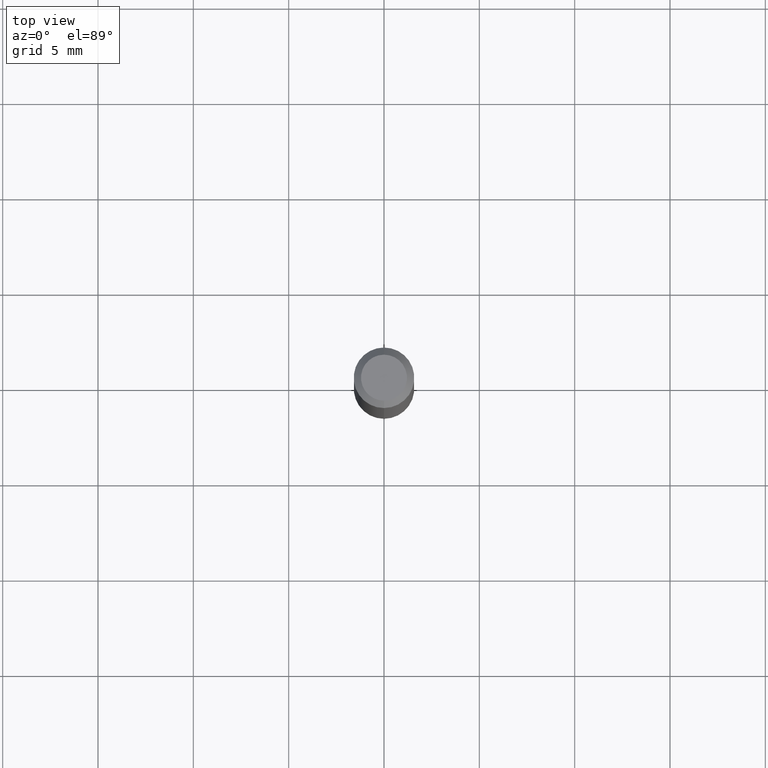
[diagram: clean part render]
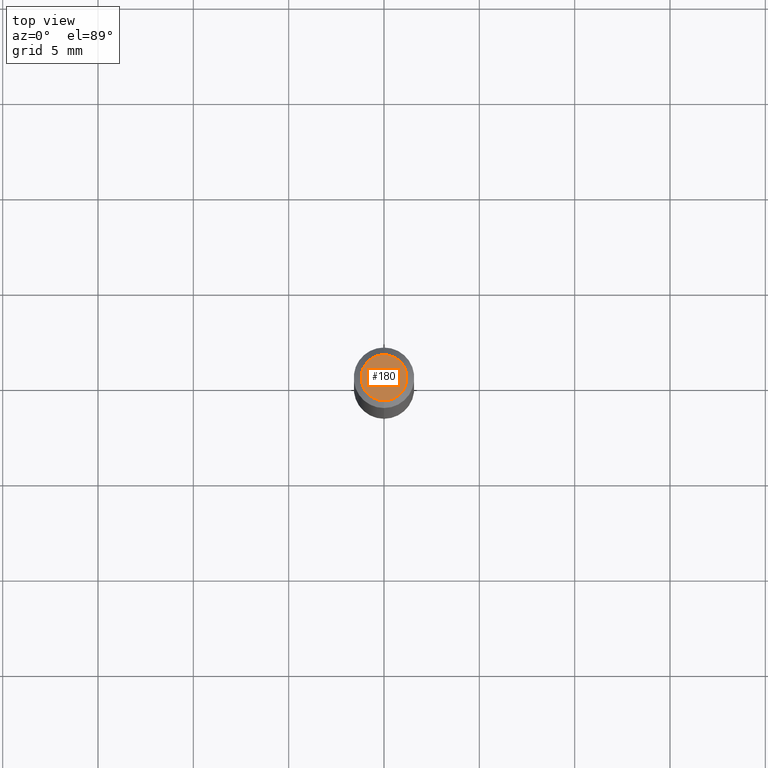
[diagram: same view with one face highlighted and labeled with its STEP entity id]
A machine part, top view. The second image highlights one B-rep face of the part: STEP entity #180.
In plain terms, the highlighted planar face has unit normal (0, -0, -1).
Its self-contained STEP definition (entity closure, byte-faithful):
#22 = CIRCLE ( 'NONE', #226, 0.04749999999999999362 ) ;
#56 = DIRECTION ( 'NONE',  ( -2.445468490087946806E-29, 3.491481791512312384E-15, 1.000000000000000000 ) ) ;
#90 = EDGE_LOOP ( 'NONE', ( #480, #282 ) ) ;
#113 = CARTESIAN_POINT ( 'NONE',  ( 3.316907271900976096E-16, 0.04749999999999999362, -1.985954913721402075E-16 ) ) ;
#130 = VERTEX_POINT ( 'NONE', #203 ) ;
#136 = EDGE_CURVE ( 'NONE', #326, #130, #22, .T. ) ;
#159 = CARTESIAN_POINT ( 'NONE',  ( 1.601787058865817249E-45, -2.286927994606437826E-31, -6.550021255061077955E-17 ) ) ;
#180 = ADVANCED_FACE ( 'NONE', ( #313 ), #468, .F. ) ;
#203 = CARTESIAN_POINT ( 'NONE',  ( 3.840629472727447874E-16, 0.04749999999999999362, -2.313455976474456035E-16 ) ) ;
#226 = AXIS2_PLACEMENT_3D ( 'NONE', #159, #507, #317 ) ;
#244 = CARTESIAN_POINT ( 'NONE',  ( -3.773273898774340269E-16, -0.04749999999999999362, 1.003451725462240444E-16 ) ) ;
#252 = AXIS2_PLACEMENT_3D ( 'NONE', #407, #56, #358 ) ;
#253 = AXIS2_PLACEMENT_3D ( 'NONE', #113, #276, #426 ) ;
#274 = EDGE_CURVE ( 'NONE', #130, #326, #389, .T. ) ;
#276 = DIRECTION ( 'NONE',  ( 2.445468490087946245E-29, -3.491481791512312778E-15, -1.000000000000000000 ) ) ;
#282 = ORIENTED_EDGE ( 'NONE', *, *, #136, .T. ) ;
#313 = FACE_OUTER_BOUND ( 'NONE', #90, .T. ) ;
#317 = DIRECTION ( 'NONE',  ( -6.982962677686266711E-15, -1.000000000000000000, 3.491481791512312778E-15 ) ) ;
#326 = VERTEX_POINT ( 'NONE', #244 ) ;
#358 = DIRECTION ( 'NONE',  ( -6.982962677686266711E-15, -1.000000000000000000, 3.491481791512312778E-15 ) ) ;
#389 = CIRCLE ( 'NONE', #252, 0.04749999999999999362 ) ;
#407 = CARTESIAN_POINT ( 'NONE',  ( 1.601787058865817249E-45, -2.286927994606437826E-31, -6.550021255061077955E-17 ) ) ;
#426 = DIRECTION ( 'NONE',  ( 6.982962677686265922E-15, 1.000000000000000000, -3.491481791512312778E-15 ) ) ;
#468 = PLANE ( 'NONE',  #253 ) ;
#480 = ORIENTED_EDGE ( 'NONE', *, *, #274, .T. ) ;
#507 = DIRECTION ( 'NONE',  ( -2.445468490087946806E-29, 3.491481791512312384E-15, 1.000000000000000000 ) ) ;